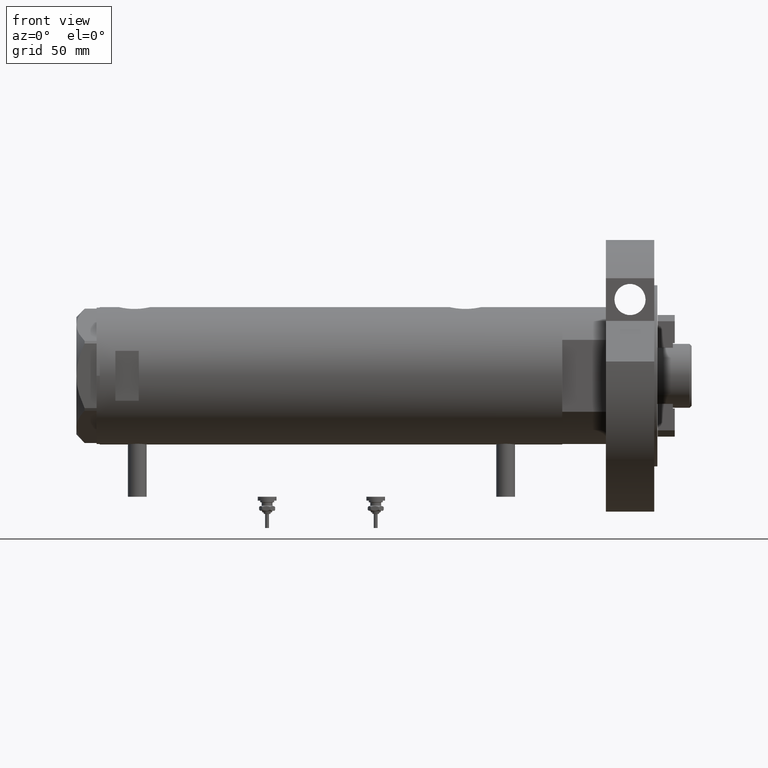
[diagram: clean part render]
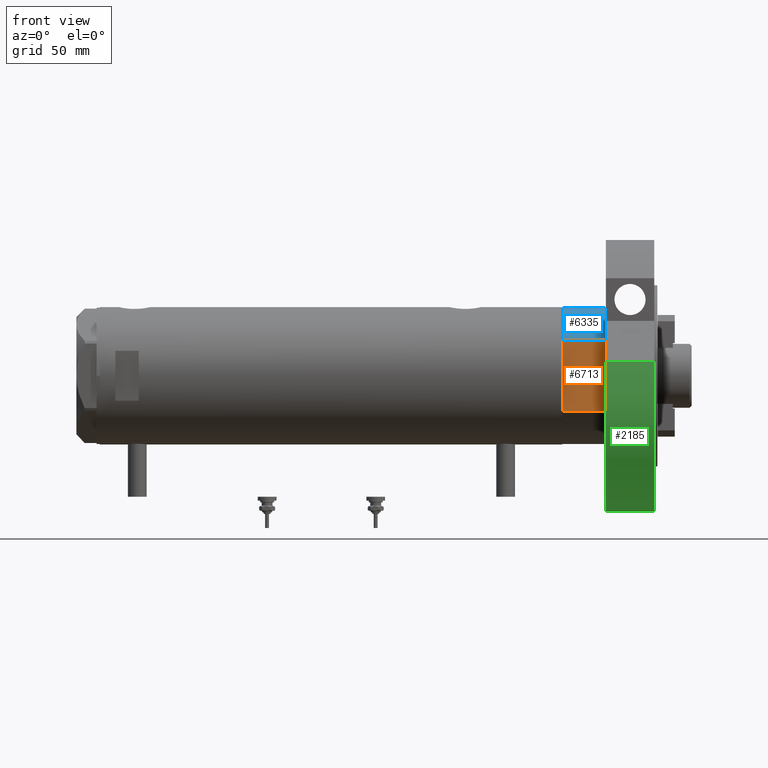
[diagram: same view with three faces highlighted in distinct colors, each labeled with its STEP entity id]
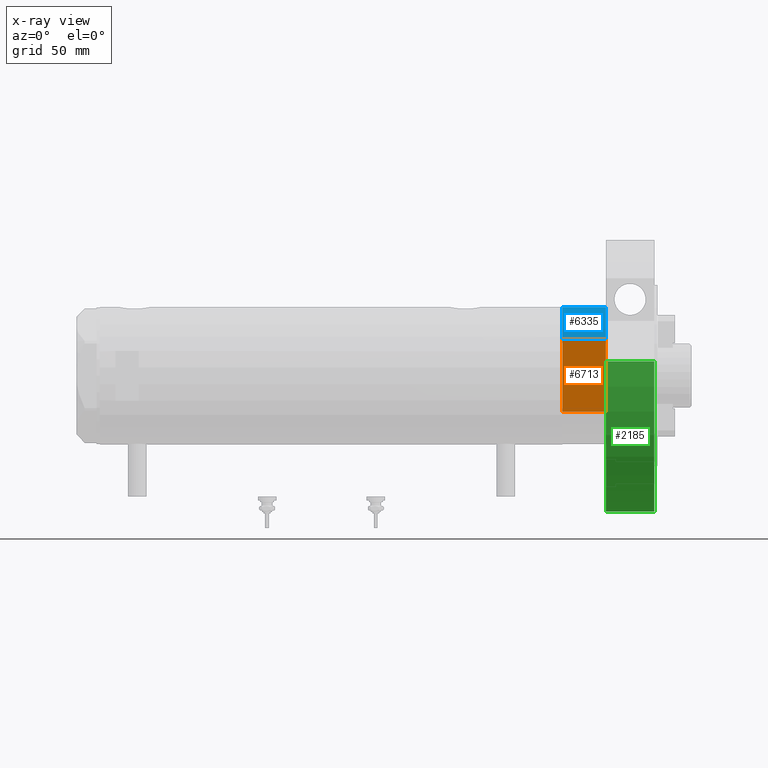
[diagram: x-ray of the same camera — body ghosted, the three highlighted faces saturated]
A machine part, front view with three faces highlighted in distinct colors.
The next image is the same camera in x-ray (body ghosted, the three faces saturated) — at least one of them is partly hidden behind the body in this view.
Their STEP definitions:

[orange] entity #6713 — the highlighted planar face has unit normal (-0, 1, 0).
#62 = LINE ( 'NONE', #6004, #5242 ) ;
#122 = ORIENTED_EDGE ( 'NONE', *, *, #7517, .F. ) ;
#255 = ORIENTED_EDGE ( 'NONE', *, *, #5626, .F. ) ;
#299 = LINE ( 'NONE', #4688, #1647 ) ;
#422 = LINE ( 'NONE', #7504, #3055 ) ;
#680 = VECTOR ( 'NONE', #4363, 1000.000000000000000 ) ;
#900 = CARTESIAN_POINT ( 'NONE',  ( 0.000000000000000000, -37.50000000000000000, 27.89999999999999858 ) ) ;
#1075 = CARTESIAN_POINT ( 'NONE',  ( -13.91941090707505957, -37.50000000000000000, 0.000000000000000000 ) ) ;
#1105 = DIRECTION ( 'NONE',  ( -1.000000000000000000, -0.000000000000000000, -0.000000000000000000 ) ) ;
#1199 = CARTESIAN_POINT ( 'NONE',  ( 13.91941090707505957, -37.50000000000000000, 0.000000000000000000 ) ) ;
#1226 = LINE ( 'NONE', #2354, #680 ) ;
#1273 = DIRECTION ( 'NONE',  ( 0.000000000000000000, -0.000000000000000000, 1.000000000000000000 ) ) ;
#1541 = LINE ( 'NONE', #7205, #7058 ) ;
#1647 = VECTOR ( 'NONE', #3975, 1000.000000000000000 ) ;
#1717 = VERTEX_POINT ( 'NONE', #1075 ) ;
#1781 = LINE ( 'NONE', #7692, #2714 ) ;
#2106 = VERTEX_POINT ( 'NONE', #2816 ) ;
#2186 = EDGE_CURVE ( 'NONE', #4232, #6270, #1226, .T. ) ;
#2301 = DIRECTION ( 'NONE',  ( -1.000000000000000000, -0.000000000000000000, -0.000000000000000000 ) ) ;
#2349 = DIRECTION ( 'NONE',  ( -1.000000000000000000, -0.000000000000000000, -0.000000000000000000 ) ) ;
#2354 = CARTESIAN_POINT ( 'NONE',  ( -23.01629857296780557, -37.50000000000000000, 0.000000000000000000 ) ) ;
#2521 = PLANE ( 'NONE',  #4464 ) ;
#2541 = VERTEX_POINT ( 'NONE', #8252 ) ;
#2714 = VECTOR ( 'NONE', #1105, 1000.000000000000000 ) ;
#2816 = CARTESIAN_POINT ( 'NONE',  ( -23.01629857296780557, -37.50000000000000000, 0.000000000000000000 ) ) ;
#2873 = EDGE_LOOP ( 'NONE', ( #5359, #3504, #7912, #255, #122, #3567, #7323 ) ) ;
#3055 = VECTOR ( 'NONE', #2301, 1000.000000000000000 ) ;
#3097 = EDGE_CURVE ( 'NONE', #4232, #2541, #3278, .T. ) ;
#3278 = LINE ( 'NONE', #3322, #4979 ) ;
#3322 = CARTESIAN_POINT ( 'NONE',  ( 23.01629857296780557, -37.50000000000000000, 0.000000000000000000 ) ) ;
#3504 = ORIENTED_EDGE ( 'NONE', *, *, #4281, .T. ) ;
#3567 = ORIENTED_EDGE ( 'NONE', *, *, #2186, .F. ) ;
#3975 = DIRECTION ( 'NONE',  ( -0.000000000000000000, -0.000000000000000000, 1.000000000000000000 ) ) ;
#4004 = DIRECTION ( 'NONE',  ( -1.000000000000000000, -0.000000000000000000, -0.000000000000000000 ) ) ;
#4232 = VERTEX_POINT ( 'NONE', #7823 ) ;
#4281 = EDGE_CURVE ( 'NONE', #4289, #4890, #62, .T. ) ;
#4289 = VERTEX_POINT ( 'NONE', #900 ) ;
#4363 = DIRECTION ( 'NONE',  ( -1.000000000000000000, -0.000000000000000000, -0.000000000000000000 ) ) ;
#4464 = AXIS2_PLACEMENT_3D ( 'NONE', #5082, #7019, #1273 ) ;
#4595 = EDGE_CURVE ( 'NONE', #2106, #4890, #299, .T. ) ;
#4688 = CARTESIAN_POINT ( 'NONE',  ( -23.01629857296780557, -37.50000000000000000, 0.000000000000000000 ) ) ;
#4890 = VERTEX_POINT ( 'NONE', #6325 ) ;
#4979 = VECTOR ( 'NONE', #7106, 1000.000000000000000 ) ;
#5082 = CARTESIAN_POINT ( 'NONE',  ( -23.01629857296780557, -37.50000000000000000, 0.000000000000000000 ) ) ;
#5242 = VECTOR ( 'NONE', #2349, 1000.000000000000000 ) ;
#5359 = ORIENTED_EDGE ( 'NONE', *, *, #7236, .T. ) ;
#5626 = EDGE_CURVE ( 'NONE', #1717, #2106, #1781, .T. ) ;
#6004 = CARTESIAN_POINT ( 'NONE',  ( -23.01629857296780557, -37.50000000000000000, 27.89999999999999858 ) ) ;
#6270 = VERTEX_POINT ( 'NONE', #1199 ) ;
#6325 = CARTESIAN_POINT ( 'NONE',  ( -23.01629857296780557, -37.50000000000000000, 27.89999999999999858 ) ) ;
#6713 = ADVANCED_FACE ( 'NONE', ( #8274 ), #2521, .F. ) ;
#7019 = DIRECTION ( 'NONE',  ( -0.000000000000000000, 1.000000000000000000, 0.000000000000000000 ) ) ;
#7058 = VECTOR ( 'NONE', #4004, 1000.000000000000000 ) ;
#7106 = DIRECTION ( 'NONE',  ( -0.000000000000000000, -0.000000000000000000, 1.000000000000000000 ) ) ;
#7205 = CARTESIAN_POINT ( 'NONE',  ( -23.01629857296780557, -37.50000000000000000, 0.000000000000000000 ) ) ;
#7236 = EDGE_CURVE ( 'NONE', #2541, #4289, #422, .T. ) ;
#7323 = ORIENTED_EDGE ( 'NONE', *, *, #3097, .T. ) ;
#7504 = CARTESIAN_POINT ( 'NONE',  ( -23.01629857296780557, -37.50000000000000000, 27.89999999999999858 ) ) ;
#7517 = EDGE_CURVE ( 'NONE', #6270, #1717, #1541, .T. ) ;
#7692 = CARTESIAN_POINT ( 'NONE',  ( -23.01629857296780557, -37.50000000000000000, 0.000000000000000000 ) ) ;
#7823 = CARTESIAN_POINT ( 'NONE',  ( 23.01629857296780557, -37.50000000000000000, 0.000000000000000000 ) ) ;
#7912 = ORIENTED_EDGE ( 'NONE', *, *, #4595, .F. ) ;
#8252 = CARTESIAN_POINT ( 'NONE',  ( 23.01629857296780557, -37.50000000000000000, 27.89999999999999858 ) ) ;
#8274 = FACE_OUTER_BOUND ( 'NONE', #2873, .T. ) ;

[blue] entity #6335 — the highlighted cylindrical surface (partial cylindrical patch) has radius 44 mm, axis along (-1, -0, 0).
#61 = CARTESIAN_POINT ( 'NONE',  ( -44.00000000000000000, 0.000000000000000000, 27.89999999999999858 ) ) ;
#110 = CIRCLE ( 'NONE', #5470, 44.00000000000000000 ) ;
#299 = LINE ( 'NONE', #4688, #1647 ) ;
#393 = CARTESIAN_POINT ( 'NONE',  ( 0.000000000000000000, 0.000000000000000000, 0.000000000000000000 ) ) ;
#412 = CARTESIAN_POINT ( 'NONE',  ( 0.000000000000000000, 0.000000000000000000, 27.89999999999999858 ) ) ;
#1507 = VERTEX_POINT ( 'NONE', #5852 ) ;
#1647 = VECTOR ( 'NONE', #3975, 1000.000000000000000 ) ;
#1651 = DIRECTION ( 'NONE',  ( 0.000000000000000000, 0.000000000000000000, 1.000000000000000000 ) ) ;
#1669 = DIRECTION ( 'NONE',  ( 0.000000000000000000, 0.000000000000000000, 1.000000000000000000 ) ) ;
#1902 = VERTEX_POINT ( 'NONE', #61 ) ;
#2106 = VERTEX_POINT ( 'NONE', #2816 ) ;
#2147 = ORIENTED_EDGE ( 'NONE', *, *, #3232, .T. ) ;
#2488 = FACE_OUTER_BOUND ( 'NONE', #5092, .T. ) ;
#2816 = CARTESIAN_POINT ( 'NONE',  ( -23.01629857296780557, -37.50000000000000000, 0.000000000000000000 ) ) ;
#3232 = EDGE_CURVE ( 'NONE', #1902, #1507, #5631, .T. ) ;
#3623 = DIRECTION ( 'NONE',  ( 1.000000000000000000, 0.000000000000000000, 0.000000000000000000 ) ) ;
#3729 = ORIENTED_EDGE ( 'NONE', *, *, #4595, .T. ) ;
#3873 = CYLINDRICAL_SURFACE ( 'NONE', #7429, 44.00000000000000000 ) ;
#3975 = DIRECTION ( 'NONE',  ( -0.000000000000000000, -0.000000000000000000, 1.000000000000000000 ) ) ;
#4043 = VECTOR ( 'NONE', #4992, 1000.000000000000000 ) ;
#4595 = EDGE_CURVE ( 'NONE', #2106, #4890, #299, .T. ) ;
#4688 = CARTESIAN_POINT ( 'NONE',  ( -23.01629857296780557, -37.50000000000000000, 0.000000000000000000 ) ) ;
#4890 = VERTEX_POINT ( 'NONE', #6325 ) ;
#4992 = DIRECTION ( 'NONE',  ( -0.000000000000000000, -0.000000000000000000, -1.000000000000000000 ) ) ;
#5049 = DIRECTION ( 'NONE',  ( -1.000000000000000000, 0.000000000000000000, 0.000000000000000000 ) ) ;
#5092 = EDGE_LOOP ( 'NONE', ( #6453, #2147, #7470, #3729 ) ) ;
#5194 = EDGE_CURVE ( 'NONE', #1902, #4890, #5921, .T. ) ;
#5470 = AXIS2_PLACEMENT_3D ( 'NONE', #393, #1651, #6128 ) ;
#5631 = LINE ( 'NONE', #8183, #4043 ) ;
#5852 = CARTESIAN_POINT ( 'NONE',  ( -44.00000000000000000, 0.000000000000000000, 0.000000000000000000 ) ) ;
#5921 = CIRCLE ( 'NONE', #7271, 44.00000000000000000 ) ;
#6128 = DIRECTION ( 'NONE',  ( 1.000000000000000000, 0.000000000000000000, 0.000000000000000000 ) ) ;
#6325 = CARTESIAN_POINT ( 'NONE',  ( -23.01629857296780557, -37.50000000000000000, 27.89999999999999858 ) ) ;
#6335 = ADVANCED_FACE ( 'NONE', ( #2488 ), #3873, .T. ) ;
#6438 = DIRECTION ( 'NONE',  ( -0.000000000000000000, -0.000000000000000000, -1.000000000000000000 ) ) ;
#6453 = ORIENTED_EDGE ( 'NONE', *, *, #5194, .F. ) ;
#6959 = EDGE_CURVE ( 'NONE', #1507, #2106, #110, .T. ) ;
#7271 = AXIS2_PLACEMENT_3D ( 'NONE', #412, #1669, #3623 ) ;
#7429 = AXIS2_PLACEMENT_3D ( 'NONE', #8205, #6438, #5049 ) ;
#7470 = ORIENTED_EDGE ( 'NONE', *, *, #6959, .T. ) ;
#8183 = CARTESIAN_POINT ( 'NONE',  ( -44.00000000000000000, 0.000000000000000000, 27.89999999999999858 ) ) ;
#8205 = CARTESIAN_POINT ( 'NONE',  ( 0.000000000000000000, 0.000000000000000000, 27.89999999999999858 ) ) ;

[green] entity #2185 — the highlighted cylindrical surface (partial cylindrical patch) has radius 87 mm, axis along (-1, -0, 0).
#230 = DIRECTION ( 'NONE',  ( 1.000000000000000000, 0.000000000000000000, 0.000000000000000000 ) ) ;
#250 = VECTOR ( 'NONE', #7926, 1000.000000000000000 ) ;
#510 = ORIENTED_EDGE ( 'NONE', *, *, #2081, .T. ) ;
#622 = VERTEX_POINT ( 'NONE', #6303 ) ;
#884 = CARTESIAN_POINT ( 'NONE',  ( 0.000000000000000000, 0.000000000000000000, 31.00000000000000000 ) ) ;
#1030 = CARTESIAN_POINT ( 'NONE',  ( -87.00000000000000000, 0.000000000000000000, 31.00000000000000000 ) ) ;
#1044 = VERTEX_POINT ( 'NONE', #1855 ) ;
#1123 = ORIENTED_EDGE ( 'NONE', *, *, #7060, .F. ) ;
#1480 = CIRCLE ( 'NONE', #5890, 87.00000000000000000 ) ;
#1515 = VERTEX_POINT ( 'NONE', #5349 ) ;
#1820 = DIRECTION ( 'NONE',  ( -0.000000000000000000, -0.000000000000000000, -1.000000000000000000 ) ) ;
#1837 = ORIENTED_EDGE ( 'NONE', *, *, #2336, .F. ) ;
#1855 = CARTESIAN_POINT ( 'NONE',  ( 9.196694222441541555, 86.51254715576759224, 31.00000000000000000 ) ) ;
#2019 = CARTESIAN_POINT ( 'NONE',  ( -87.00000000000000000, 0.000000000000000000, 31.00000000000000000 ) ) ;
#2081 = EDGE_CURVE ( 'NONE', #1515, #622, #1480, .T. ) ;
#2185 = ADVANCED_FACE ( 'NONE', ( #8232 ), #2473, .T. ) ;
#2317 = CARTESIAN_POINT ( 'NONE',  ( 0.000000000000000000, 0.000000000000000000, 0.000000000000000000 ) ) ;
#2336 = EDGE_CURVE ( 'NONE', #1044, #6532, #7507, .T. ) ;
#2473 = CYLINDRICAL_SURFACE ( 'NONE', #4822, 87.00000000000000000 ) ;
#2772 = DIRECTION ( 'NONE',  ( 0.000000000000000000, 0.000000000000000000, 1.000000000000000000 ) ) ;
#2984 = CARTESIAN_POINT ( 'NONE',  ( 0.000000000000000000, 0.000000000000000000, 31.00000000000000000 ) ) ;
#3246 = LINE ( 'NONE', #5683, #7602 ) ;
#4060 = DIRECTION ( 'NONE',  ( 1.000000000000000000, 0.000000000000000000, 0.000000000000000000 ) ) ;
#4177 = ORIENTED_EDGE ( 'NONE', *, *, #7930, .F. ) ;
#4456 = DIRECTION ( 'NONE',  ( -0.000000000000000000, -0.000000000000000000, 1.000000000000000000 ) ) ;
#4822 = AXIS2_PLACEMENT_3D ( 'NONE', #2984, #1820, #7601 ) ;
#5349 = CARTESIAN_POINT ( 'NONE',  ( 9.196694222441541555, 86.51254715576759224, 0.000000000000000000 ) ) ;
#5683 = CARTESIAN_POINT ( 'NONE',  ( 9.196694222441541555, 86.51254715576759224, 0.000000000000000000 ) ) ;
#5755 = DIRECTION ( 'NONE',  ( 0.000000000000000000, 0.000000000000000000, 1.000000000000000000 ) ) ;
#5890 = AXIS2_PLACEMENT_3D ( 'NONE', #2317, #2772, #230 ) ;
#6303 = CARTESIAN_POINT ( 'NONE',  ( -87.00000000000000000, 0.000000000000000000, 0.000000000000000000 ) ) ;
#6532 = VERTEX_POINT ( 'NONE', #1030 ) ;
#6634 = EDGE_LOOP ( 'NONE', ( #1123, #1837, #4177, #510 ) ) ;
#7060 = EDGE_CURVE ( 'NONE', #6532, #622, #7255, .T. ) ;
#7255 = LINE ( 'NONE', #2019, #250 ) ;
#7507 = CIRCLE ( 'NONE', #8041, 87.00000000000000000 ) ;
#7601 = DIRECTION ( 'NONE',  ( -1.000000000000000000, 0.000000000000000000, 0.000000000000000000 ) ) ;
#7602 = VECTOR ( 'NONE', #4456, 1000.000000000000000 ) ;
#7926 = DIRECTION ( 'NONE',  ( -0.000000000000000000, -0.000000000000000000, -1.000000000000000000 ) ) ;
#7930 = EDGE_CURVE ( 'NONE', #1515, #1044, #3246, .T. ) ;
#8041 = AXIS2_PLACEMENT_3D ( 'NONE', #884, #5755, #4060 ) ;
#8232 = FACE_OUTER_BOUND ( 'NONE', #6634, .T. ) ;